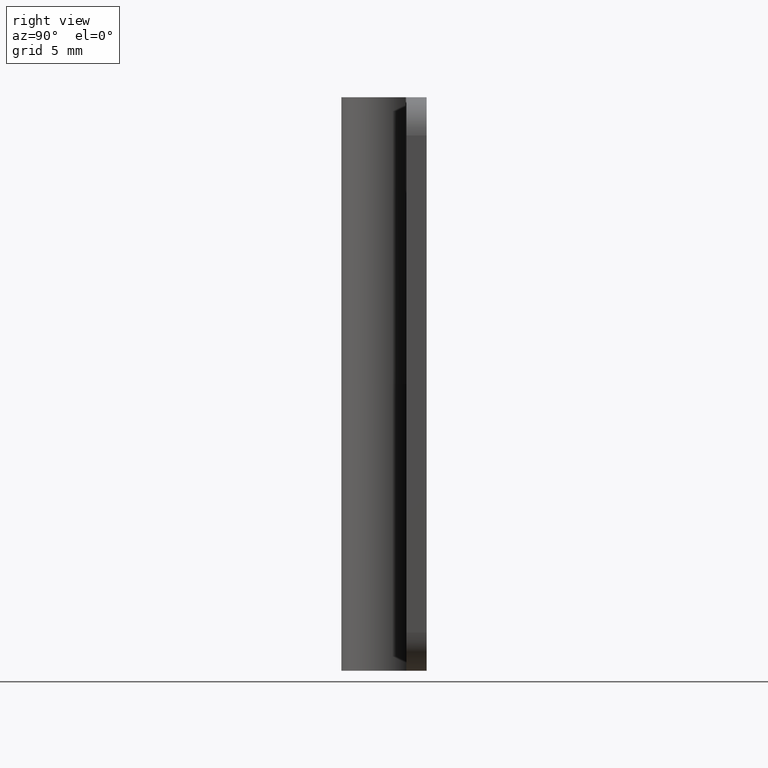
[diagram: clean part render]
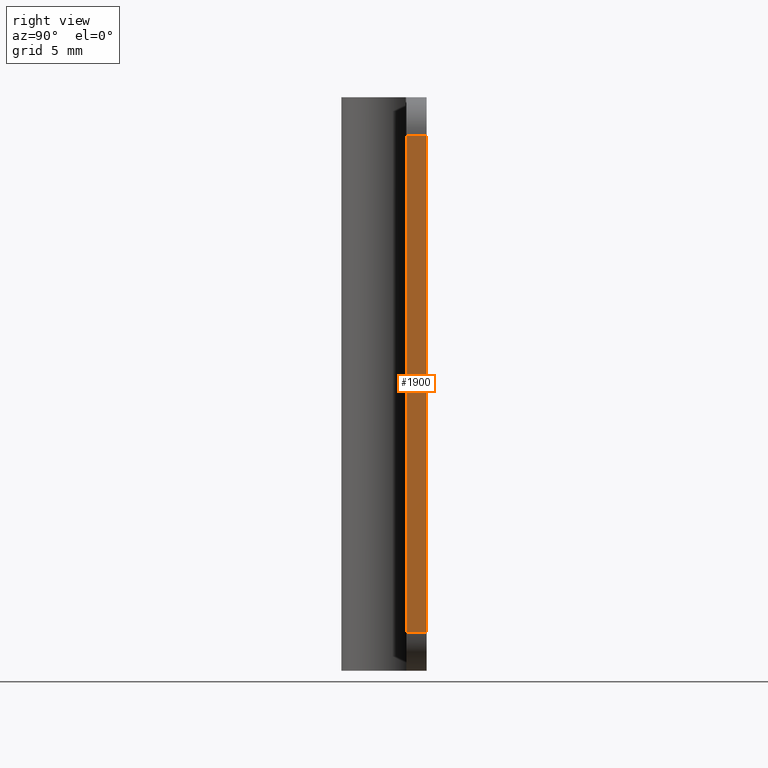
[diagram: same view with one face highlighted and labeled with its STEP entity id]
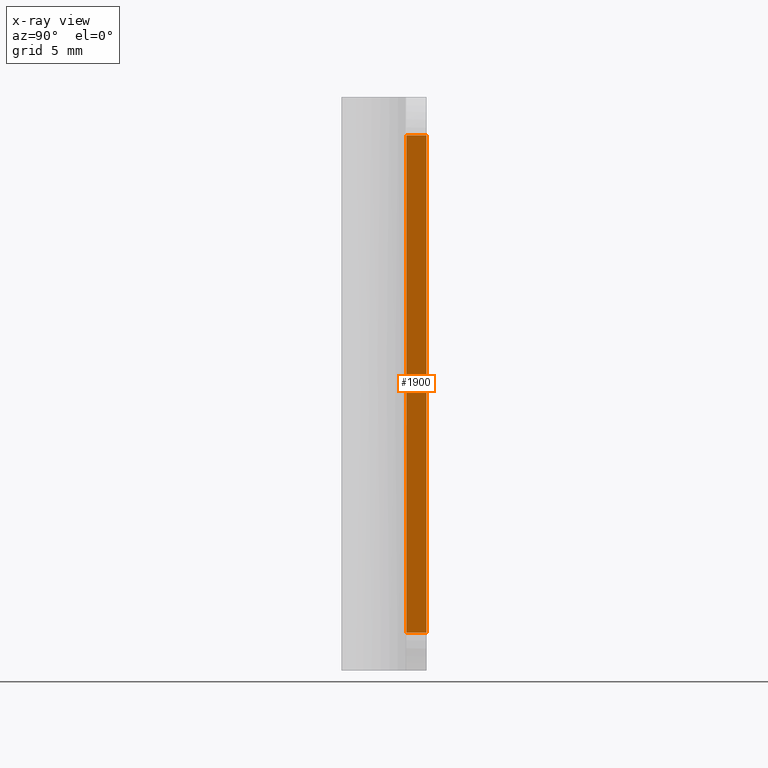
[diagram: x-ray of the same camera — body ghosted, the highlighted face saturated]
A machine part, right view. The second image highlights one B-rep face of the part: STEP entity #1900.
The next image is the same camera in x-ray: the body ghosted, the highlighted face saturated — about 0% of this face is hidden behind the body in this view.
In plain terms, the highlighted face is a freeform B-spline surface patch.
Its self-contained STEP definition (entity closure, byte-faithful):
#1485=CARTESIAN_POINT('',(17.500000000000000,3.349998000000000,42.000008000000037));
#1486=VERTEX_POINT('',#1485);
#1507=CARTESIAN_POINT('',(17.500000000000000,1.750000000000000,42.000008000000037));
#1508=VERTEX_POINT('',#1507);
#1522=CARTESIAN_POINT('',(17.500000000000000,3.349998000000000,42.000008000000037));
#1523=CARTESIAN_POINT('',(17.500000000000000,1.750000000000000,42.000008000000037));
#1524=QUASI_UNIFORM_CURVE('',1,(#1522,#1523),.UNSPECIFIED.,.F.,.U.);
#1525=EDGE_CURVE('',#1486,#1508,#1524,.T.);
#1544=CARTESIAN_POINT('',(17.500000000000000,3.349998000000000,3.0));
#1545=VERTEX_POINT('',#1544);
#1561=CARTESIAN_POINT('',(17.500000000000000,1.750000000000000,3.0));
#1562=VERTEX_POINT('',#1561);
#1563=CARTESIAN_POINT('',(17.500000000000000,1.750000000000000,3.0));
#1564=CARTESIAN_POINT('',(17.500000000000000,3.349998000000000,3.0));
#1565=QUASI_UNIFORM_CURVE('',1,(#1563,#1564),.UNSPECIFIED.,.F.,.U.);
#1566=EDGE_CURVE('',#1562,#1545,#1565,.T.);
#1854=CARTESIAN_POINT('',(17.500000000000000,1.750000000000000,3.0));
#1855=CARTESIAN_POINT('',(17.500000000000000,1.750000000000000,42.000008000000037));
#1856=QUASI_UNIFORM_CURVE('',1,(#1854,#1855),.UNSPECIFIED.,.F.,.U.);
#1857=EDGE_CURVE('',#1562,#1508,#1856,.T.);
#1885=CARTESIAN_POINT('',(17.500000000000000,1.670080103001107,1.051949675989584));
#1886=CARTESIAN_POINT('',(17.500000000000000,1.670080103001107,43.948059370072187));
#1887=CARTESIAN_POINT('',(17.500000000000000,3.429917939914184,1.051949675989584));
#1888=CARTESIAN_POINT('',(17.500000000000000,3.429917939914184,43.948059370072187));
#1889=B_SPLINE_SURFACE_WITH_KNOTS('',1,1,((#1885,#1887),(#1886,#1888)),.UNSPECIFIED.,.F.,.F.,.U.,(2,2),(2,2),(0.0,42.896109694082611),(0.041708334948495,0.958291687403247),.UNSPECIFIED.);
#1890=ORIENTED_EDGE('',*,*,#1857,.F.);
#1891=ORIENTED_EDGE('',*,*,#1566,.T.);
#1892=CARTESIAN_POINT('',(17.500000000000000,3.349998000000000,3.0));
#1893=CARTESIAN_POINT('',(17.500000000000000,3.349998000000000,42.000008000000037));
#1894=QUASI_UNIFORM_CURVE('',1,(#1892,#1893),.UNSPECIFIED.,.F.,.U.);
#1895=EDGE_CURVE('',#1545,#1486,#1894,.T.);
#1896=ORIENTED_EDGE('',*,*,#1895,.T.);
#1897=ORIENTED_EDGE('',*,*,#1525,.T.);
#1898=EDGE_LOOP('',(#1890,#1891,#1896,#1897));
#1899=FACE_OUTER_BOUND('',#1898,.T.);
#1900=ADVANCED_FACE('',(#1899),#1889,.F.);